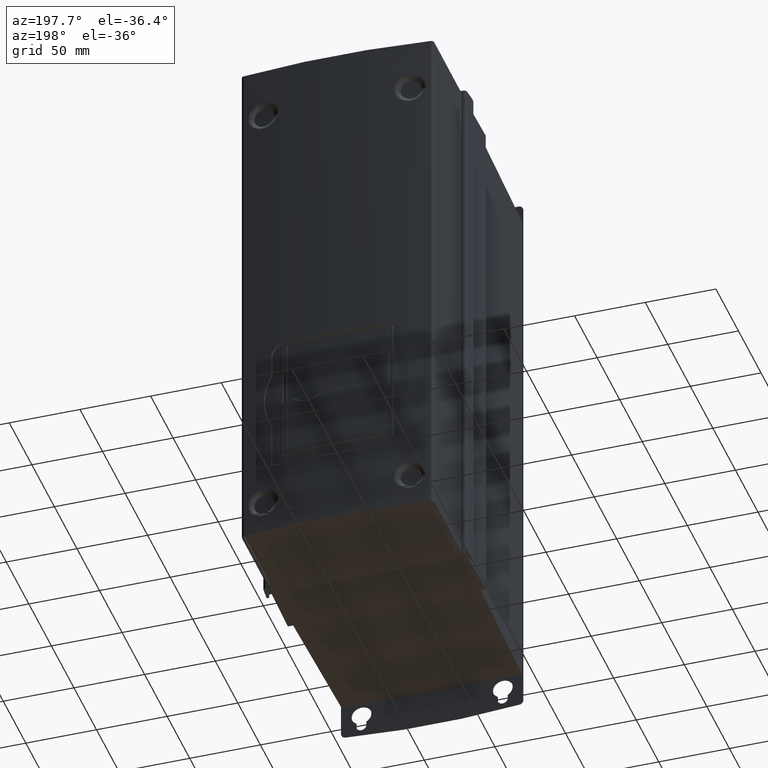
[diagram: clean part render]
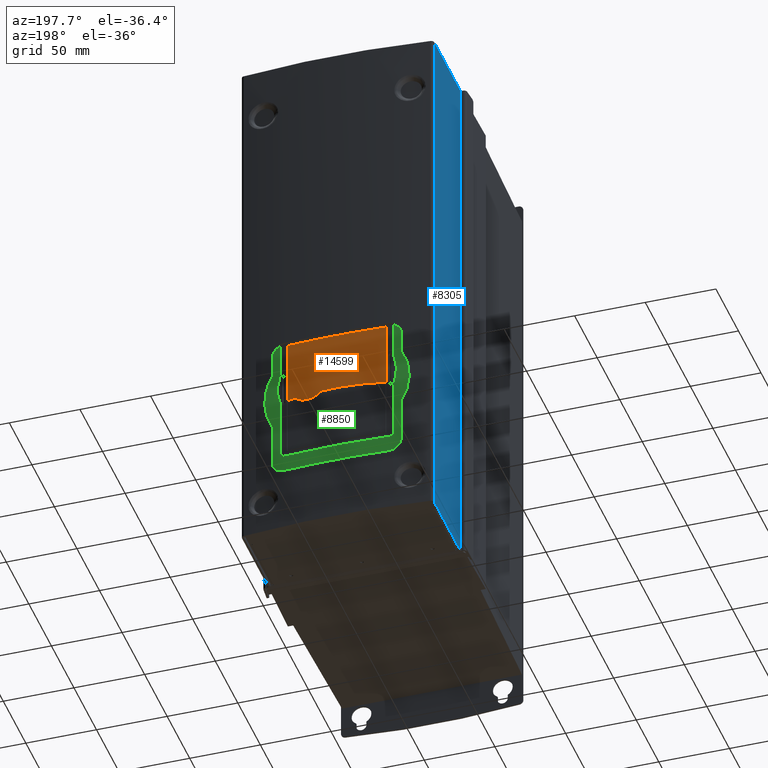
[diagram: same view with three faces highlighted in distinct colors, each labeled with its STEP entity id]
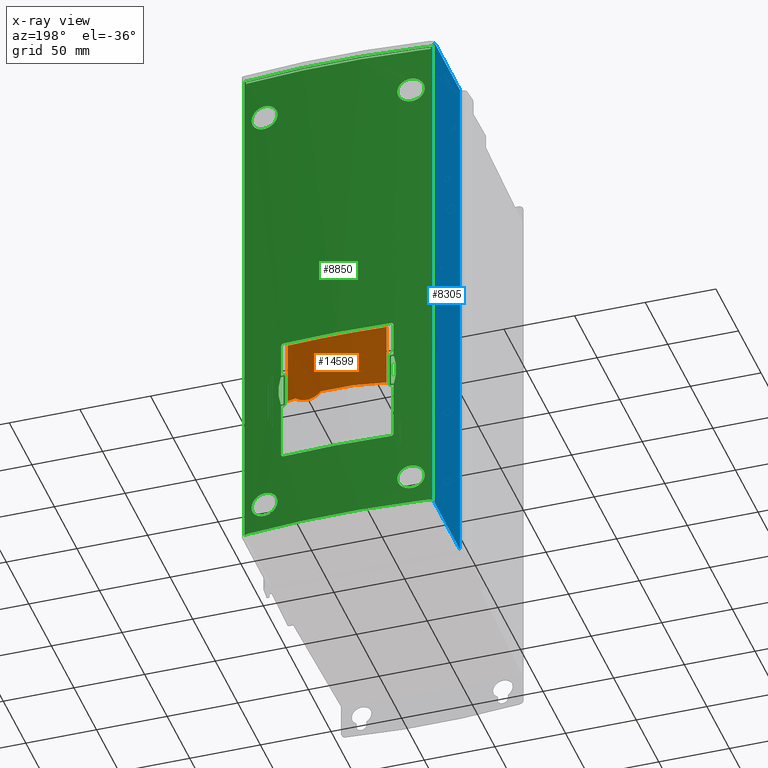
[diagram: x-ray of the same camera — body ghosted, the three highlighted faces saturated]
A machine part, auxiliary view with three faces highlighted in distinct colors.
The next image is the same camera in x-ray (body ghosted, the three faces saturated) — at least one of them is partly hidden behind the body in this view.
Their STEP definitions:

[orange] entity #14599 — the highlighted cylindrical surface (partial cylindrical patch) has radius 599 mm, axis along (0, 0, 1).
#3696=CARTESIAN_POINT('',(-1.457658521832E1,-5.090272251098E2,
-1.180225346024E2));
#3697=DIRECTION('',(0.E0,-1.092036811456E-14,-1.E0));
#3698=DIRECTION('',(-5.790649446275E-2,9.983220111262E-1,-1.091317724375E-14));
#3699=AXIS2_PLACEMENT_3D('',#3696,#3697,#3698);
#3706=DIRECTION('',(-2.570438628942E-6,2.291984071997E-7,9.999999999967E-1));
#3707=VECTOR('',#3706,4.621646966448E1);
#3708=CARTESIAN_POINT('',(2.040501245532E1,8.895043570095E1,-1.645390042667E2));
#3709=LINE('',#3708,#3707);
#3710=DIRECTION('',(1.133374869878E-5,-1.514689978622E-6,-9.999999999346E-1));
#3711=VECTOR('',#3710,4.621694912402E1);
#3712=CARTESIAN_POINT('',(-4.955797290201E1,8.895045598562E1,
-1.183225349429E2));
#3713=LINE('',#3712,#3711);
#3714=CARTESIAN_POINT('',(-4.955744909072E1,8.895038598127E1,
-1.645394840639E2));
#3715=CARTESIAN_POINT('',(-4.445480794766E1,8.924888396594E1,
-1.638157406801E2));
#3716=CARTESIAN_POINT('',(-3.422565451728E1,8.971660283388E1,
-1.626856698376E2));
#3717=CARTESIAN_POINT('',(-1.878365226236E1,9.002426465813E1,
-1.619462787299E2));
#3718=CARTESIAN_POINT('',(-8.500820159940E0,8.996423303556E1,
-1.620906908570E2));
#3719=CARTESIAN_POINT('',(-3.358576399076E0,8.986791597002E1,
-1.623225154068E2));
#3721=CARTESIAN_POINT('',(-3.358576399076E0,8.986791597002E1,
-1.623225154068E2));
#3722=CARTESIAN_POINT('',(-2.733300930721E0,8.985620421518E1,
-1.631068334475E2));
#3723=CARTESIAN_POINT('',(-1.342421607563E0,8.982796970847E1,
-1.644755506794E2));
#3724=CARTESIAN_POINT('',(1.181617027870E0,8.976746465499E1,-1.660077993834E2));
#3725=CARTESIAN_POINT('',(3.948543081832E0,8.968852806886E1,-1.669017932938E2));
#3726=CARTESIAN_POINT('',(6.863914437716E0,8.959129851885E1,-1.671390911920E2));
#3727=CARTESIAN_POINT('',(9.729359844350E0,8.948166481135E1,-1.667090213010E2));
#3728=CARTESIAN_POINT('',(1.247009749024E1,8.936370874363E1,-1.656097308494E2));
#3729=CARTESIAN_POINT('',(1.406711543971E1,8.928799986001E1,-1.644830705674E2));
#3730=CARTESIAN_POINT('',(1.481329349280E1,8.925134449849E1,-1.638094814260E2));
#3732=CARTESIAN_POINT('',(1.481329349280E1,8.925134449849E1,-1.638094814260E2));
#3733=CARTESIAN_POINT('',(1.543562638739E1,8.922077292494E1,-1.638834259193E2));
#3734=CARTESIAN_POINT('',(1.667971819127E1,8.915769608032E1,-1.640363942958E2));
#3735=CARTESIAN_POINT('',(1.854360722817E1,8.905739854228E1,-1.642798151441E2));
#3736=CARTESIAN_POINT('',(1.978478674447E1,8.898671868211E1,-1.644510306612E2));
#3737=CARTESIAN_POINT('',(2.040501245532E1,8.895043570095E1,-1.645390042667E2));
#3903=CARTESIAN_POINT('',(-4.955797290201E1,8.895045598562E1,
-1.183225349429E2));
#3904=CARTESIAN_POINT('',(-4.955797294604E1,8.895045598305E1,
-1.182707862997E2));
#3905=CARTESIAN_POINT('',(-4.953129059140E1,8.895234647937E1,
-1.181666410947E2));
#3906=CARTESIAN_POINT('',(-4.941312923100E1,8.895885915520E1,
-1.180496978579E2));
#3907=CARTESIAN_POINT('',(-4.931209162977E1,8.896478896619E1,
-1.180225349063E2));
#3908=CARTESIAN_POINT('',(-4.926030992751E1,8.896779229200E1,
-1.180225346024E2));
#4066=CARTESIAN_POINT('',(2.010713597043E1,8.896780810855E1,-1.180225346024E2));
#4067=CARTESIAN_POINT('',(2.016147930673E1,8.896465620892E1,-1.180225342835E2));
#4068=CARTESIAN_POINT('',(2.026523544631E1,8.895855386899E1,-1.180529522195E2));
#4069=CARTESIAN_POINT('',(2.037820406079E1,8.895235234762E1,-1.181683340730E2));
#4070=CARTESIAN_POINT('',(2.040489365872E1,8.895044629369E1,-1.182713469798E2));
#4071=CARTESIAN_POINT('',(2.040489365872E1,8.895044629369E1,-1.183225346024E2));
#7104=CARTESIAN_POINT('',(-4.926257540143E1,8.896765955349E1,
-1.180225346024E2));
#7105=CARTESIAN_POINT('',(2.010939873033E1,8.896765991511E1,-1.180225346024E2));
#7106=VERTEX_POINT('',#7104);
#7107=VERTEX_POINT('',#7105);
#7108=CARTESIAN_POINT('',(2.040501245532E1,8.895043570095E1,-1.645390042667E2));
#7109=CARTESIAN_POINT('',(2.040489365872E1,8.895044629369E1,-1.183225346024E2));
#7110=VERTEX_POINT('',#7108);
#7111=VERTEX_POINT('',#7109);
#7112=VERTEX_POINT('',#3903);
#7113=CARTESIAN_POINT('',(-4.955744909072E1,8.895038598127E1,
-1.645394840639E2));
#7114=VERTEX_POINT('',#7113);
#7115=VERTEX_POINT('',#3719);
#7116=VERTEX_POINT('',#3730);
#14577=CARTESIAN_POINT('',(-1.457658521832E1,-5.090272251098E2,
-1.680402866210E2));
#14578=DIRECTION('',(0.E0,1.092036811456E-14,1.E0));
#14579=DIRECTION('',(5.839979779926E-2,9.982932753540E-1,-1.090173005316E-14));
#14580=AXIS2_PLACEMENT_3D('',#14577,#14578,#14579);
#14581=CYLINDRICAL_SURFACE('',#14580,5.989999999987E2);
#14583=ORIENTED_EDGE('',*,*,#14582,.T.);
#14585=ORIENTED_EDGE('',*,*,#14584,.F.);
#14586=ORIENTED_EDGE('',*,*,#14560,.F.);
#14588=ORIENTED_EDGE('',*,*,#14587,.F.);
#14590=ORIENTED_EDGE('',*,*,#14589,.T.);
#14592=ORIENTED_EDGE('',*,*,#14591,.T.);
#14594=ORIENTED_EDGE('',*,*,#14593,.T.);
#14596=ORIENTED_EDGE('',*,*,#14595,.T.);
#14597=EDGE_LOOP('',(#14583,#14585,#14586,#14588,#14590,#14592,#14594,#14596));
#14598=FACE_OUTER_BOUND('',#14597,.F.);
#14599=ADVANCED_FACE('',(#14598),#14581,.T.);
#3700=CIRCLE('',#3699,5.989999999987E2);
#3720=B_SPLINE_CURVE_WITH_KNOTS('',3,(#3714,#3715,#3716,#3717,#3718,#3719),
.UNSPECIFIED.,.F.,.F.,(4,1,1,4),(0.E0,3.333333333333E-1,6.666666666667E-1,1.E0),
.UNSPECIFIED.);
#3731=B_SPLINE_CURVE_WITH_KNOTS('',3,(#3721,#3722,#3723,#3724,#3725,#3726,#3727,
#3728,#3729,#3730),.UNSPECIFIED.,.F.,.F.,(4,1,1,1,1,1,1,4),(0.E0,
1.428571428571E-1,2.857142857143E-1,4.285714285714E-1,5.714285714286E-1,
7.142857142857E-1,8.571428571429E-1,1.E0),.UNSPECIFIED.);
#3738=B_SPLINE_CURVE_WITH_KNOTS('',3,(#3732,#3733,#3734,#3735,#3736,#3737),
.UNSPECIFIED.,.F.,.F.,(4,1,1,4),(0.E0,3.333333333333E-1,6.666666666667E-1,1.E0),
.UNSPECIFIED.);
#3909=B_SPLINE_CURVE_WITH_KNOTS('',3,(#3903,#3904,#3905,#3906,#3907,#3908),
.UNSPECIFIED.,.F.,.F.,(4,1,1,4),(0.E0,3.333333333333E-1,6.666666666667E-1,1.E0),
.UNSPECIFIED.);
#4072=B_SPLINE_CURVE_WITH_KNOTS('',3,(#4066,#4067,#4068,#4069,#4070,#4071),
.UNSPECIFIED.,.F.,.F.,(4,1,1,4),(0.E0,3.333333333333E-1,6.666666666667E-1,1.E0),
.UNSPECIFIED.);
#14560=EDGE_CURVE('',#7106,#7107,#3700,.T.);
#14582=EDGE_CURVE('',#7110,#7111,#3709,.T.);
#14584=EDGE_CURVE('',#7107,#7111,#4072,.T.);
#14587=EDGE_CURVE('',#7112,#7106,#3909,.T.);
#14589=EDGE_CURVE('',#7112,#7114,#3713,.T.);
#14591=EDGE_CURVE('',#7114,#7115,#3720,.T.);
#14593=EDGE_CURVE('',#7115,#7116,#3731,.T.);
#14595=EDGE_CURVE('',#7116,#7110,#3738,.T.);

[blue] entity #8305 — the highlighted planar face has unit normal (-1, 0, 0).
#1055=DIRECTION('',(0.E0,8.541277353501E-14,1.E0));
#1056=VECTOR('',#1055,3.85E2);
#1057=CARTESIAN_POINT('',(-8.256995434269E1,2.912412359864E1,
-2.703627030293E2));
#1058=LINE('',#1057,#1056);
#1063=DIRECTION('',(-5.796013437992E-14,-1.E0,0.E0));
#1064=VECTOR('',#1063,5.737288291225E1);
#1065=CARTESIAN_POINT('',(-8.256995434269E1,8.649700651092E1,1.146372969707E2));
#1066=LINE('',#1065,#1064);
#1067=DIRECTION('',(-1.362310850809E-14,1.E0,0.E0));
#1068=VECTOR('',#1067,5.737288291231E1);
#1069=CARTESIAN_POINT('',(-8.256995434269E1,2.912412359864E1,
-2.703627030293E2));
#1070=LINE('',#1069,#1068);
#1071=DIRECTION('',(0.E0,9.205680950575E-14,-1.E0));
#1072=VECTOR('',#1071,3.85E2);
#1073=CARTESIAN_POINT('',(-8.256995434269E1,8.649700651092E1,1.146372969707E2));
#1074=LINE('',#1073,#1072);
#6936=CARTESIAN_POINT('',(-8.256995434269E1,2.912412359868E1,1.146372969707E2));
#6937=VERTEX_POINT('',#6936);
#6938=CARTESIAN_POINT('',(-8.256995434269E1,8.649700651092E1,1.146372969707E2));
#6939=VERTEX_POINT('',#6938);
#7020=CARTESIAN_POINT('',(-8.256995434269E1,8.649700651096E1,
-2.703627030293E2));
#7021=VERTEX_POINT('',#7020);
#7022=CARTESIAN_POINT('',(-8.256995434269E1,2.912412359864E1,
-2.703627030293E2));
#7023=VERTEX_POINT('',#7022);
#8293=CARTESIAN_POINT('',(-8.256995434269E1,2.837412359868E1,1.146372969707E2));
#8294=DIRECTION('',(-1.E0,0.E0,0.E0));
#8295=DIRECTION('',(0.E0,1.E0,0.E0));
#8296=AXIS2_PLACEMENT_3D('',#8293,#8294,#8295);
#8297=PLANE('',#8296);
#8299=ORIENTED_EDGE('',*,*,#8298,.F.);
#8300=ORIENTED_EDGE('',*,*,#7978,.T.);
#8301=ORIENTED_EDGE('',*,*,#8279,.F.);
#8302=ORIENTED_EDGE('',*,*,#8150,.T.);
#8303=EDGE_LOOP('',(#8299,#8300,#8301,#8302));
#8304=FACE_OUTER_BOUND('',#8303,.F.);
#8305=ADVANCED_FACE('',(#8304),#8297,.T.);
#7978=EDGE_CURVE('',#6939,#6937,#1066,.T.);
#8150=EDGE_CURVE('',#7023,#7021,#1070,.T.);
#8279=EDGE_CURVE('',#7023,#6937,#1058,.T.);
#8298=EDGE_CURVE('',#6939,#7021,#1074,.T.);

[green] entity #8850 — the highlighted cylindrical surface (partial cylindrical patch) has radius 600 mm, axis along (0, 0, -1).
#238=CARTESIAN_POINT('',(-1.457660667599E1,-5.102567225525E2,1.117364577420E2));
#239=DIRECTION('',(0.E0,0.E0,-1.E0));
#240=DIRECTION('',(-1.108222461112E-1,9.938402435839E-1,0.E0));
#241=AXIS2_PLACEMENT_3D('',#238,#239,#240);
#243=CARTESIAN_POINT('',(-1.457660667599E1,-5.102567225525E2,1.117364577420E2));
#244=DIRECTION('',(0.E0,0.E0,-1.E0));
#245=DIRECTION('',(-9.658782684049E-2,9.953244655419E-1,0.E0));
#246=AXIS2_PLACEMENT_3D('',#243,#244,#245);
#634=CARTESIAN_POINT('',(-1.457660667599E1,-5.102567225525E2,
-2.678156366343E2));
#635=DIRECTION('',(0.E0,0.E0,1.E0));
#636=DIRECTION('',(1.108444205555E-1,9.938377706808E-1,0.E0));
#637=AXIS2_PLACEMENT_3D('',#634,#635,#636);
#709=CARTESIAN_POINT('',(-1.457660667599E1,-5.102567225525E2,
-2.678156366343E2));
#710=DIRECTION('',(0.E0,0.E0,1.E0));
#711=DIRECTION('',(-1.085382628914E-1,9.940922721199E-1,0.E0));
#712=AXIS2_PLACEMENT_3D('',#709,#710,#711);
#1303=DIRECTION('',(-4.734098693470E-9,5.276452357149E-9,-1.E0));
#1304=VECTOR('',#1303,4.527476719860E-1);
#1305=CARTESIAN_POINT('',(5.056798939502E1,8.619627777552E1,-2.673628889623E2));
#1306=LINE('',#1305,#1304);
#1307=DIRECTION('',(0.E0,0.E0,1.E0));
#1308=VECTOR('',#1307,3.795520943763E2);
#1309=CARTESIAN_POINT('',(5.193004565731E1,8.604593985606E1,-2.678156366343E2));
#1310=LINE('',#1309,#1308);
#1311=DIRECTION('',(0.E0,0.E0,-1.E0));
#1312=VECTOR('',#1311,3.795520943763E2);
#1313=CARTESIAN_POINT('',(-8.106995434269E1,8.604742359793E1,1.117364577420E2));
#1314=LINE('',#1313,#1312);
#1315=DIRECTION('',(2.491239920472E-9,2.772417530303E-9,1.E0));
#1316=VECTOR('',#1315,4.513265927650E-1);
#1317=CARTESIAN_POINT('',(-7.969956441085E1,8.619864071954E1,
-2.678156366343E2));
#1318=LINE('',#1317,#1316);
#1319=CARTESIAN_POINT('',(2.539998028020E1,8.841002317897E1,-1.430719437886E2));
#1320=CARTESIAN_POINT('',(2.600134835478E1,8.836986607626E1,-1.449201968221E2));
#1321=CARTESIAN_POINT('',(2.679494166132E1,8.831535690109E1,-1.487117142727E2));
#1322=CARTESIAN_POINT('',(2.720543342105E1,8.828671411734E1,-1.544805075642E2));
#1323=CARTESIAN_POINT('',(2.678055878842E1,8.831636536610E1,-1.605236223290E2));
#1324=CARTESIAN_POINT('',(2.598180226852E1,8.837117135271E1,-1.641970862798E2));
#1325=CARTESIAN_POINT('',(2.539992876435E1,8.841002663201E1,-1.659731248434E2));
#1327=CARTESIAN_POINT('',(2.387535031696E1,8.850988280564E1,-1.659719611423E2));
#1328=CARTESIAN_POINT('',(2.381850255810E1,8.851353370248E1,-1.659718974157E2));
#1329=CARTESIAN_POINT('',(2.372291208016E1,8.851965634385E1,-1.659440107058E2));
#1330=CARTESIAN_POINT('',(2.360944871986E1,8.852690090080E1,-1.658380507378E2));
#1331=CARTESIAN_POINT('',(2.357461345960E1,8.852911939261E1,-1.657333139645E2));
#1332=CARTESIAN_POINT('',(2.357461345960E1,8.852911939261E1,-1.656713886276E2));
#1334=DIRECTION('',(-4.234673970133E-10,-2.425456277618E-8,1.E0));
#1335=VECTOR('',#1334,2.229770873536E1);
#1336=CARTESIAN_POINT('',(2.357461345960E1,8.852911939261E1,-1.656713886276E2));
#1337=LINE('',#1336,#1335);
#1338=CARTESIAN_POINT('',(2.357461345016E1,8.852911885179E1,-1.433736798922E2));
#1339=CARTESIAN_POINT('',(2.357461345016E1,8.852911885179E1,-1.433184208456E2));
#1340=CARTESIAN_POINT('',(2.360199510385E1,8.852737579877E1,-1.432217493602E2));
#1341=CARTESIAN_POINT('',(2.370819736777E1,8.852059755613E1,-1.431085309789E2));
#1342=CARTESIAN_POINT('',(2.381188450063E1,8.851395815733E1,-1.430731790829E2));
#1343=CARTESIAN_POINT('',(2.387525616570E1,8.850988830989E1,-1.430731080435E2));
#1345=CARTESIAN_POINT('',(-5.302852469405E1,8.850988530017E1,
-1.430731080886E2));
#1346=CARTESIAN_POINT('',(-5.297167679692E1,8.851353620184E1,
-1.430731696488E2));
#1347=CARTESIAN_POINT('',(-5.287608081184E1,8.851965920228E1,
-1.431010595834E2));
#1348=CARTESIAN_POINT('',(-5.276261968770E1,8.852690360227E1,
-1.432070182174E2));
#1349=CARTESIAN_POINT('',(-5.272778394390E1,8.852912212420E1,
-1.433117553003E2));
#1350=CARTESIAN_POINT('',(-5.272778394391E1,8.852912212420E1,
-1.433736806028E2));
#1352=DIRECTION('',(3.735644155169E-10,-2.175296025992E-8,-1.E0));
#1353=VECTOR('',#1352,2.229770341199E1);
#1354=CARTESIAN_POINT('',(-5.272778394391E1,8.852912212420E1,
-1.433736806028E2));
#1355=LINE('',#1354,#1353);
#1356=CARTESIAN_POINT('',(-5.272778393558E1,8.852912163915E1,
-1.656713840148E2));
#1357=CARTESIAN_POINT('',(-5.272778104779E1,8.852912182315E1,
-1.657266430872E2));
#1358=CARTESIAN_POINT('',(-5.275516696417E1,8.852737841809E1,
-1.658233222449E2));
#1359=CARTESIAN_POINT('',(-5.286136740646E1,8.852060033308E1,
-1.659365374586E2));
#1360=CARTESIAN_POINT('',(-5.296505511541E1,8.851396089695E1,
-1.659718901475E2));
#1361=CARTESIAN_POINT('',(-5.302842674503E1,8.850989105635E1,
-1.659719611118E2));
#1363=CARTESIAN_POINT('',(-5.455314198185E1,8.841002662445E1,
-1.659731253529E2));
#1364=CARTESIAN_POINT('',(-5.513340065454E1,8.837127917729E1,
-1.642020160705E2));
#1365=CARTESIAN_POINT('',(-5.593220894432E1,8.831647466163E1,
-1.605353777869E2));
#1366=CARTESIAN_POINT('',(-5.635913696209E1,8.828667976275E1,
-1.544827597631E2));
#1367=CARTESIAN_POINT('',(-5.594774928475E1,8.831538559222E1,
-1.487076945305E2));
#1368=CARTESIAN_POINT('',(-5.515391939110E1,8.836990899878E1,
-1.449182234486E2));
#1369=CARTESIAN_POINT('',(-5.455319399479E1,8.841002318589E1,
-1.430719448542E2));
#1371=DIRECTION('',(0.E0,1.874643732733E-13,1.E0));
#1372=VECTOR('',#1371,4.048020584078E1);
#1373=CARTESIAN_POINT('',(-5.430623233383E1,8.842646315192E1,
-2.077524863271E2));
#1374=LINE('',#1373,#1372);
#1375=CARTESIAN_POINT('',(-5.252332220433E1,8.854211409894E1,
-1.672736250501E2));
#1376=CARTESIAN_POINT('',(-5.237266893589E1,8.855166036159E1,
-1.672737916807E2));
#1377=CARTESIAN_POINT('',(-5.209102987205E1,8.856939739745E1,
-1.672151789755E2));
#1378=CARTESIAN_POINT('',(-5.172489443653E1,8.859220411526E1,
-1.669722232112E2));
#1379=CARTESIAN_POINT('',(-5.148276162140E1,8.860715486973E1,
-1.666063641790E2));
#1380=CARTESIAN_POINT('',(-5.142396134097E1,8.861076901330E1,
-1.663274763796E2));
#1381=CARTESIAN_POINT('',(-5.142396134097E1,8.861076901330E1,
-1.661753260151E2));
#1383=DIRECTION('',(-3.902475679707E-14,0.E0,1.E0));
#1384=VECTOR('',#1383,2.330558282534E1);
#1385=CARTESIAN_POINT('',(-5.142396134097E1,8.861076901330E1,
-1.661753260151E2));
#1386=LINE('',#1385,#1384);
#1387=CARTESIAN_POINT('',(-5.142396134097E1,8.861076901330E1,
-1.428697431898E2));
#1388=CARTESIAN_POINT('',(-5.142396134097E1,8.861076901330E1,
-1.427172726719E2));
#1389=CARTESIAN_POINT('',(-5.148302444133E1,8.860713871843E1,
-1.424379593309E2));
#1390=CARTESIAN_POINT('',(-5.172550435993E1,8.859216630222E1,
-1.420722749517E2));
#1391=CARTESIAN_POINT('',(-5.209149994146E1,8.856936788533E1,
-1.418297493801E2));
#1392=CARTESIAN_POINT('',(-5.237286546454E1,8.855164790701E1,
-1.417712777436E2));
#1393=CARTESIAN_POINT('',(-5.252332037136E1,8.854211421509E1,
-1.417714441549E2));
#1395=DIRECTION('',(-1.163910299149E-13,0.E0,1.E0));
#1396=VECTOR('',#1395,2.448020584130E1);
#1397=CARTESIAN_POINT('',(-5.430623233383E1,8.842646315193E1,
-1.417727887186E2));
#1398=LINE('',#1397,#1396);
#1399=CARTESIAN_POINT('',(-5.430623233383E1,8.842646315193E1,
-1.172925828773E2));
#1400=CARTESIAN_POINT('',(-5.430623233383E1,8.842646315193E1,
-1.170174462977E2));
#1401=CARTESIAN_POINT('',(-5.420100468245E1,8.843346000961E1,
-1.165121248340E2));
#1402=CARTESIAN_POINT('',(-5.375909655933E1,8.846260663895E1,
-1.158442308490E2));
#1403=CARTESIAN_POINT('',(-5.309459468761E1,8.850579933139E1,
-1.153994853378E2));
#1404=CARTESIAN_POINT('',(-5.257385848783E1,8.853894912443E1,
-1.152991073779E2));
#1405=CARTESIAN_POINT('',(-5.232040442036E1,8.855493833561E1,
-1.152993860912E2));
#1407=CARTESIAN_POINT('',(2.316723443458E1,8.855493560215E1,-1.152993819594E2));
#1408=CARTESIAN_POINT('',(2.341969759230E1,8.853900888404E1,-1.152991043354E2));
#1409=CARTESIAN_POINT('',(2.393911987553E1,8.850594464471E1,-1.153986487273E2));
#1410=CARTESIAN_POINT('',(2.460452885048E1,8.846269576950E1,-1.158426200199E2));
#1411=CARTESIAN_POINT('',(2.504766002519E1,8.843346880857E1,-1.165113381286E2));
#1412=CARTESIAN_POINT('',(2.515306194697E1,8.842646030069E1,-1.170171333164E2));
#1413=CARTESIAN_POINT('',(2.515306194697E1,8.842646030069E1,-1.172925828275E2));
#1415=DIRECTION('',(-2.234939966873E-14,0.E0,-1.E0));
#1416=VECTOR('',#1415,2.448020594042E1);
#1417=CARTESIAN_POINT('',(2.515306194697E1,8.842646030069E1,-1.172925828275E2));
#1418=LINE('',#1417,#1416);
#1419=CARTESIAN_POINT('',(2.337015181355E1,8.854211137643E1,-1.417714442027E2));
#1420=CARTESIAN_POINT('',(2.321949854687E1,8.855165764981E1,-1.417712775719E2));
#1421=CARTESIAN_POINT('',(2.293785948062E1,8.856939470612E1,-1.418298902767E2));
#1422=CARTESIAN_POINT('',(2.257172404504E1,8.859220145030E1,-1.420728460418E2));
#1423=CARTESIAN_POINT('',(2.232959123048E1,8.860715222217E1,-1.424387050736E2));
#1424=CARTESIAN_POINT('',(2.227079095048E1,8.861076636995E1,-1.427175928721E2));
#1425=CARTESIAN_POINT('',(2.227079095048E1,8.861076636995E1,-1.428697432359E2));
#1427=DIRECTION('',(3.536618598734E-14,0.E0,-1.E0));
#1428=VECTOR('',#1427,2.330558273308E1);
#1429=CARTESIAN_POINT('',(2.227079095048E1,8.861076636995E1,-1.428697432359E2));
#1430=LINE('',#1429,#1428);
#1431=CARTESIAN_POINT('',(2.227079095048E1,8.861076636995E1,-1.661753259690E2));
#1432=CARTESIAN_POINT('',(2.227079095048E1,8.861076636995E1,-1.663277964863E2));
#1433=CARTESIAN_POINT('',(2.232985405051E1,8.860713607084E1,-1.666071098265E2));
#1434=CARTESIAN_POINT('',(2.257233396851E1,8.859216363721E1,-1.669727942051E2));
#1435=CARTESIAN_POINT('',(2.293832954984E1,8.856936519397E1,-1.672153197774E2));
#1436=CARTESIAN_POINT('',(2.321969507543E1,8.855164519523E1,-1.672737914136E2));
#1437=CARTESIAN_POINT('',(2.337014998059E1,8.854211149258E1,-1.672736250022E2));
#1439=DIRECTION('',(-4.783149961728E-14,0.E0,-1.E0));
#1440=VECTOR('',#1439,4.048020594041E1);
#1441=CARTESIAN_POINT('',(2.515306194697E1,8.842646030069E1,-1.672722804370E2));
#1442=LINE('',#1441,#1440);
#1443=CARTESIAN_POINT('',(2.515306194697E1,8.842646030069E1,-2.077524863774E2));
#1444=CARTESIAN_POINT('',(2.515306194697E1,8.842646030069E1,-2.080276229560E2));
#1445=CARTESIAN_POINT('',(2.504783431425E1,8.843345716487E1,-2.085329444116E2));
#1446=CARTESIAN_POINT('',(2.460592611125E1,8.846260383069E1,-2.092008384249E2));
#1447=CARTESIAN_POINT('',(2.394142453907E1,8.850579655359E1,-2.096455838281E2));
#1448=CARTESIAN_POINT('',(2.342068759592E1,8.853894642739E1,-2.097459620581E2));
#1449=CARTESIAN_POINT('',(2.316723352398E1,8.855493565712E1,-2.097456831527E2));
#1451=CARTESIAN_POINT('',(-5.232040390140E1,8.855493836342E1,
-2.097456879765E2));
#1452=CARTESIAN_POINT('',(-5.257262448570E1,8.853902696621E1,
-2.097459657109E2));
#1453=CARTESIAN_POINT('',(-5.309170860837E1,8.850598492526E1,
-2.096466953928E2));
#1454=CARTESIAN_POINT('',(-5.375775490685E1,8.846269502973E1,
-2.092023964835E2));
#1455=CARTESIAN_POINT('',(-5.420056115793E1,8.843348941454E1,
-2.085342957549E2));
#1456=CARTESIAN_POINT('',(-5.430623233403E1,8.842646315191E1,
-2.080281729068E2));
#1457=CARTESIAN_POINT('',(-5.430623233383E1,8.842646315192E1,
-2.077524863271E2));
#1459=CARTESIAN_POINT('',(-7.252929233798E1,8.693797418264E1,8.476174868869E1));
#1460=CARTESIAN_POINT('',(-7.184557851896E1,8.700432282999E1,8.535401730206E1));
#1461=CARTESIAN_POINT('',(-7.036921686985E1,8.714523389032E1,8.629757072717E1));
#1462=CARTESIAN_POINT('',(-6.780728374453E1,8.737942094447E1,8.707878552018E1));
#1463=CARTESIAN_POINT('',(-6.506247278660E1,8.761751830028E1,8.708111608575E1));
#1464=CARTESIAN_POINT('',(-6.250516832231E1,8.782758119953E1,8.633710140030E1));
#1465=CARTESIAN_POINT('',(-6.023511324644E1,8.800467439158E1,8.488974306692E1));
#1466=CARTESIAN_POINT('',(-5.846709615201E1,8.813640552882E1,8.288333720134E1));
#1467=CARTESIAN_POINT('',(-5.730867811650E1,8.821980862593E1,8.039171603792E1));
#1468=CARTESIAN_POINT('',(-5.703352342163E1,8.823923417618E1,7.858919903023E1));
#1469=CARTESIAN_POINT('',(-5.703352342163E1,8.823923417618E1,7.763729697073E1));
#1471=CARTESIAN_POINT('',(4.663950669965E1,8.661226429746E1,7.763729697073E1));
#1472=CARTESIAN_POINT('',(4.663950669965E1,8.661226429746E1,7.670305554052E1));
#1473=CARTESIAN_POINT('',(4.637479175120E1,8.663950965626E1,7.492498569963E1));
#1474=CARTESIAN_POINT('',(4.522308785536E1,8.675642595560E1,7.242424793161E1));
#1475=CARTESIAN_POINT('',(4.345768324094E1,8.693122804558E1,7.040347516496E1));
#1476=CARTESIAN_POINT('',(4.114236792131E1,8.715225823226E1,6.892717651505E1));
#1477=CARTESIAN_POINT('',(3.854365749359E1,8.738919111595E1,6.818360386879E1));
#1478=CARTESIAN_POINT('',(3.588780512805E1,8.761915222760E1,6.821074214533E1));
#1479=CARTESIAN_POINT('',(3.342211894832E1,8.782192507389E1,6.891673349928E1));
#1480=CARTESIAN_POINT('',(3.111308653415E1,8.800235889849E1,7.036341025197E1));
#1481=CARTESIAN_POINT('',(2.931652921106E1,8.813621305626E1,7.240565786390E1));
#1482=CARTESIAN_POINT('',(2.816454566825E1,8.821915502120E1,7.490336408738E1));
#1483=CARTESIAN_POINT('',(2.789460046343E1,8.823822026880E1,7.669520590108E1));
#1484=CARTESIAN_POINT('',(2.789463080060E1,8.823821811597E1,7.763758669862E1));
#1486=CARTESIAN_POINT('',(-7.252929233798E1,8.693797418264E1,
-2.392382513113E2));
#1487=CARTESIAN_POINT('',(-7.184557851898E1,8.700432282999E1,
-2.386459826980E2));
#1488=CARTESIAN_POINT('',(-7.036921686991E1,8.714523389031E1,
-2.377024292729E2));
#1489=CARTESIAN_POINT('',(-6.780728374462E1,8.737942094446E1,
-2.369212144799E2));
#1490=CARTESIAN_POINT('',(-6.506247278669E1,8.761751830027E1,
-2.369188839142E2));
#1491=CARTESIAN_POINT('',(-6.250516832238E1,8.782758119953E1,
-2.376628985997E2));
#1492=CARTESIAN_POINT('',(-6.023511324648E1,8.800467439158E1,
-2.391102569331E2));
#1493=CARTESIAN_POINT('',(-5.846709615201E1,8.813640552882E1,
-2.411166627987E2));
#1494=CARTESIAN_POINT('',(-5.730867811647E1,8.821980862593E1,
-2.436082839621E2));
#1495=CARTESIAN_POINT('',(-5.703352342162E1,8.823923417618E1,
-2.454108009698E2));
#1496=CARTESIAN_POINT('',(-5.703352342162E1,8.823923417618E1,
-2.463627030293E2));
#1498=CARTESIAN_POINT('',(4.663950669966E1,8.661226429746E1,-2.463627030293E2));
#1499=CARTESIAN_POINT('',(4.663950669966E1,8.661226429746E1,-2.472969444596E2));
#1500=CARTESIAN_POINT('',(4.637479175119E1,8.663950965626E1,-2.490750143005E2));
#1501=CARTESIAN_POINT('',(4.522308785529E1,8.675642595561E1,-2.515757520685E2));
#1502=CARTESIAN_POINT('',(4.345768324091E1,8.693122804558E1,-2.535965248351E2));
#1503=CARTESIAN_POINT('',(4.114236792139E1,8.715225823225E1,-2.550728234850E2));
#1504=CARTESIAN_POINT('',(3.854365749360E1,8.738919111595E1,-2.558163961313E2));
#1505=CARTESIAN_POINT('',(3.588780512781E1,8.761915222762E1,-2.557892578547E2));
#1506=CARTESIAN_POINT('',(3.342211894811E1,8.782192507391E1,-2.550832665006E2));
#1507=CARTESIAN_POINT('',(3.111308653407E1,8.800235889850E1,-2.536365897479E2));
#1508=CARTESIAN_POINT('',(2.931652921102E1,8.813621305626E1,-2.515943421360E2));
#1509=CARTESIAN_POINT('',(2.816454566826E1,8.821915502120E1,-2.490966359125E2));
#1510=CARTESIAN_POINT('',(2.789460046344E1,8.823822026879E1,-2.473047940989E2));
#1511=CARTESIAN_POINT('',(2.789463080061E1,8.823821811596E1,-2.463624133014E2));
#1513=CARTESIAN_POINT('',(-7.252941405380E1,8.693909998630E1,1.109337056727E2));
#1514=CARTESIAN_POINT('',(-5.884445705915E1,8.826710939657E1,1.108643625072E2));
#1515=CARTESIAN_POINT('',(-3.146163021723E1,8.997642675103E1,1.107681840132E2));
#1516=CARTESIAN_POINT('',(9.775826001173E0,8.972045953606E1,1.107851975925E2));
#1517=CARTESIAN_POINT('',(3.712344305714E1,8.766941495298E1,1.108925065234E2));
#1518=CARTESIAN_POINT('',(5.079089346940E1,8.617188991688E1,1.109712016993E2));
#1520=CARTESIAN_POINT('',(-1.457660667599E1,-5.102567225525E2,
-2.673635604758E2));
#1521=DIRECTION('',(0.E0,0.E0,1.E0));
#1522=DIRECTION('',(1.085743267933E-1,9.940883338825E-1,0.E0));
#1523=AXIS2_PLACEMENT_3D('',#1520,#1521,#1522);
#1525=CARTESIAN_POINT('',(-1.457660667599E1,-5.102567225525E2,
-2.673635604758E2));
#1526=DIRECTION('',(0.E0,0.E0,1.E0));
#1527=DIRECTION('',(-9.658782681164E-2,9.953244655447E-1,0.E0));
#1528=AXIS2_PLACEMENT_3D('',#1525,#1526,#1527);
#2071=CARTESIAN_POINT('',(2.539998028020E1,8.841002317897E1,-1.430719437886E2));
#2072=CARTESIAN_POINT('',(2.489146233379E1,8.844398009865E1,-1.430725365089E2));
#2073=CARTESIAN_POINT('',(2.438385886073E1,8.847722488889E1,-1.430725379013E2));
#2074=CARTESIAN_POINT('',(2.387525616570E1,8.850988830989E1,-1.430731080435E2));
#2101=CARTESIAN_POINT('',(2.387535031696E1,8.850988280564E1,-1.659719611423E2));
#2102=CARTESIAN_POINT('',(2.438393554695E1,8.847722026540E1,-1.659725312690E2));
#2103=CARTESIAN_POINT('',(2.489142826181E1,8.844398234387E1,-1.659725321443E2));
#2104=CARTESIAN_POINT('',(2.539992876435E1,8.841002663201E1,-1.659731248434E2));
#2209=CARTESIAN_POINT('',(-5.302852469405E1,8.850988530017E1,
-1.430731080886E2));
#2210=CARTESIAN_POINT('',(-5.353714166511E1,8.847722075778E1,
-1.430725379269E2));
#2211=CARTESIAN_POINT('',(-5.404466176166E1,8.844398105962E1,
-1.430725375911E2));
#2212=CARTESIAN_POINT('',(-5.455319399479E1,8.841002318589E1,
-1.430719448542E2));
#2223=CARTESIAN_POINT('',(-5.455314198185E1,8.841002662445E1,
-1.659731253529E2));
#2224=CARTESIAN_POINT('',(-5.404462719264E1,8.844398329042E1,
-1.659725326371E2));
#2225=CARTESIAN_POINT('',(-5.353702628183E1,8.847722787480E1,
-1.659725312498E2));
#2226=CARTESIAN_POINT('',(-5.302842674503E1,8.850989105635E1,
-1.659719611118E2));
#2371=CARTESIAN_POINT('',(-5.232040390140E1,8.855493836342E1,
-2.097456879765E2));
#2372=CARTESIAN_POINT('',(-4.394269133284E1,8.908344840868E1,
-2.097364627993E2));
#2373=CARTESIAN_POINT('',(-2.715692901430E1,8.978866202398E1,
-2.097298208648E2));
#2374=CARTESIAN_POINT('',(-1.996241290199E0,8.978866113252E1,
-2.097298238030E2));
#2375=CARTESIAN_POINT('',(1.478952099207E1,8.908344628320E1,-2.097364579654E2));
#2376=CARTESIAN_POINT('',(2.316723352398E1,8.855493565712E1,-2.097456831527E2));
#2407=CARTESIAN_POINT('',(2.515306194697E1,8.842646030069E1,-1.672722804370E2));
#2408=CARTESIAN_POINT('',(2.495516576397E1,8.843959303934E1,-1.672725096698E2));
#2409=CARTESIAN_POINT('',(2.455913746334E1,8.846567661943E1,-1.672724229722E2));
#2410=CARTESIAN_POINT('',(2.396639512315E1,8.850412705569E1,-1.672734986074E2));
#2411=CARTESIAN_POINT('',(2.356808447408E1,8.852956920555E1,-1.672734060757E2));
#2412=CARTESIAN_POINT('',(2.337014998059E1,8.854211149258E1,-1.672736250022E2));
#2451=CARTESIAN_POINT('',(2.337015181355E1,8.854211137643E1,-1.417714442027E2));
#2452=CARTESIAN_POINT('',(2.356808630694E1,8.852956908758E1,-1.417716631292E2));
#2453=CARTESIAN_POINT('',(2.396639426782E1,8.850412711074E1,-1.417715705975E2));
#2454=CARTESIAN_POINT('',(2.455913770772E1,8.846567660370E1,-1.417726462327E2));
#2455=CARTESIAN_POINT('',(2.495516576397E1,8.843959303934E1,-1.417725595351E2));
#2456=CARTESIAN_POINT('',(2.515306194697E1,8.842646030069E1,-1.417727887679E2));
#2479=CARTESIAN_POINT('',(2.316723443458E1,8.855493560215E1,-1.152993819594E2));
#2480=CARTESIAN_POINT('',(1.478952190383E1,8.908344624522E1,-1.153086071470E2));
#2481=CARTESIAN_POINT('',(-1.996241784727E0,8.978866114385E1,
-1.153152479600E2));
#2482=CARTESIAN_POINT('',(-2.715692865111E1,8.978866204132E1,
-1.153152455252E2));
#2483=CARTESIAN_POINT('',(-4.394269185063E1,8.908344836067E1,
-1.153086112680E2));
#2484=CARTESIAN_POINT('',(-5.232040442036E1,8.855493833561E1,
-1.152993860912E2));
#2512=CARTESIAN_POINT('',(-5.430623233383E1,8.842646315193E1,
-1.417727887186E2));
#2513=CARTESIAN_POINT('',(-5.410833615100E1,8.843959587630E1,
-1.417725594860E2));
#2514=CARTESIAN_POINT('',(-5.371230785100E1,8.846567942781E1,
-1.417726461834E2));
#2515=CARTESIAN_POINT('',(-5.311956551056E1,8.850412982138E1,
-1.417715705494E2));
#2516=CARTESIAN_POINT('',(-5.272125486453E1,8.852957194234E1,
-1.417716630810E2));
#2517=CARTESIAN_POINT('',(-5.252332037136E1,8.854211421509E1,
-1.417714441549E2));
#2556=CARTESIAN_POINT('',(-5.252332220433E1,8.854211409894E1,
-1.672736250501E2));
#2557=CARTESIAN_POINT('',(-5.272125669740E1,8.852957182437E1,
-1.672734061238E2));
#2558=CARTESIAN_POINT('',(-5.311956465522E1,8.850412987643E1,
-1.672734986555E2));
#2559=CARTESIAN_POINT('',(-5.371230809538E1,8.846567941208E1,
-1.672724230215E2));
#2560=CARTESIAN_POINT('',(-5.410833615100E1,8.843959587630E1,
-1.672725097189E2));
#2561=CARTESIAN_POINT('',(-5.430623233383E1,8.842646315193E1,
-1.672722804863E2));
#2974=CARTESIAN_POINT('',(-7.252929233798E1,8.693797418264E1,
-2.392382513113E2));
#2975=CARTESIAN_POINT('',(-7.304832318587E1,8.688760662573E1,
-2.396878629354E2));
#2976=CARTESIAN_POINT('',(-7.396404803753E1,8.679738965851E1,
-2.406745809495E2));
#2977=CARTESIAN_POINT('',(-7.501120717372E1,8.669210081351E1,
-2.424466582976E2));
#2978=CARTESIAN_POINT('',(-7.564328086221E1,8.662761121252E1,
-2.443847496830E2));
#2979=CARTESIAN_POINT('',(-7.578065385366E1,8.661350170835E1,
-2.456952021849E2));
#2980=CARTESIAN_POINT('',(-7.578065289429E1,8.661350180672E1,
-2.463627154016E2));
#3003=CARTESIAN_POINT('',(-7.578065289429E1,8.661350180672E1,
-2.463627154016E2));
#3004=CARTESIAN_POINT('',(-7.578065193484E1,8.661350190510E1,
-2.470302793960E2));
#3005=CARTESIAN_POINT('',(-7.564326117320E1,8.662761323231E1,
-2.483407802387E2));
#3006=CARTESIAN_POINT('',(-7.501110490337E1,8.669211123610E1,
-2.502789744524E2));
#3007=CARTESIAN_POINT('',(-7.396410113125E1,8.679738393756E1,
-2.520507005533E2));
#3008=CARTESIAN_POINT('',(-7.304836584522E1,8.688760325119E1,
-2.530375094158E2));
#3009=CARTESIAN_POINT('',(-7.252929183807E1,8.693797499634E1,
-2.534871581902E2));
#3011=CARTESIAN_POINT('',(-7.252929183807E1,8.693797499634E1,
-2.534871581902E2));
#3012=CARTESIAN_POINT('',(-7.192898565395E1,8.699622963769E1,
-2.540071744812E2));
#3013=CARTESIAN_POINT('',(-7.063404572505E1,8.712001470817E1,
-2.548646313531E2));
#3014=CARTESIAN_POINT('',(-6.843616794762E1,8.732261184514E1,
-2.556592576161E2));
#3015=CARTESIAN_POINT('',(-6.596188315734E1,8.754050578968E1,
-2.558668820096E2));
#3016=CARTESIAN_POINT('',(-6.365822345428E1,8.773382844052E1,
-2.554665298939E2));
#3017=CARTESIAN_POINT('',(-6.145748575868E1,8.791015244064E1,
-2.544786185461E2));
#3018=CARTESIAN_POINT('',(-5.960210843288E1,8.805223462081E1,
-2.529838611415E2));
#3019=CARTESIAN_POINT('',(-5.816537269499E1,8.815825451713E1,
-2.510609139492E2));
#3020=CARTESIAN_POINT('',(-5.724761412861E1,8.822410151130E1,
-2.488037413684E2));
#3021=CARTESIAN_POINT('',(-5.703352342162E1,8.823923417618E1,
-2.471998065425E2));
#3022=CARTESIAN_POINT('',(-5.703352342162E1,8.823923417618E1,
-2.463627030293E2));
#3126=CARTESIAN_POINT('',(4.663950669965E1,8.661226429746E1,7.763729697073E1));
#3127=CARTESIAN_POINT('',(4.663950669965E1,8.661226429746E1,7.845932716920E1));
#3128=CARTESIAN_POINT('',(4.643414837152E1,8.663338120229E1,8.005281859440E1));
#3129=CARTESIAN_POINT('',(4.548627453191E1,8.672985551898E1,8.238834480498E1));
#3130=CARTESIAN_POINT('',(4.395620039905E1,8.688222360680E1,8.437817503112E1));
#3131=CARTESIAN_POINT('',(4.200278614910E1,8.707098635252E1,8.588520518201E1));
#3132=CARTESIAN_POINT('',(3.965760638725E1,8.728870211764E1,8.684599845176E1));
#3133=CARTESIAN_POINT('',(3.731080129038E1,8.749710463138E1,8.714871660307E1));
#3134=CARTESIAN_POINT('',(3.486766578206E1,8.770412615341E1,8.684758531545E1));
#3135=CARTESIAN_POINT('',(3.261089733183E1,8.788613646980E1,8.593074293319E1));
#3136=CARTESIAN_POINT('',(3.060752983149E1,8.804042134506E1,8.442026403550E1));
#3137=CARTESIAN_POINT('',(2.907296584443E1,8.815386247021E1,8.243543505564E1));
#3138=CARTESIAN_POINT('',(2.810618965151E1,8.822326850147E1,8.008971735595E1));
#3139=CARTESIAN_POINT('',(2.789465772988E1,8.823821620497E1,7.847410604230E1));
#3140=CARTESIAN_POINT('',(2.789463080060E1,8.823821811597E1,7.763758669862E1));
#3228=CARTESIAN_POINT('',(-7.252929233798E1,8.693797418264E1,8.476174868869E1));
#3229=CARTESIAN_POINT('',(-7.304832318585E1,8.688760662573E1,8.431213706464E1));
#3230=CARTESIAN_POINT('',(-7.396404803750E1,8.679738965851E1,8.332541905056E1));
#3231=CARTESIAN_POINT('',(-7.501120717369E1,8.669210081351E1,8.155334170252E1));
#3232=CARTESIAN_POINT('',(-7.564328086222E1,8.662761121252E1,7.961525031705E1));
#3233=CARTESIAN_POINT('',(-7.578065385367E1,8.661350170834E1,7.830479781514E1));
#3234=CARTESIAN_POINT('',(-7.578065289429E1,8.661350180672E1,7.763728459835E1));
#3257=CARTESIAN_POINT('',(-7.578065289429E1,8.661350180672E1,7.763728459835E1));
#3258=CARTESIAN_POINT('',(-7.578065193484E1,8.661350190510E1,7.696972060401E1));
#3259=CARTESIAN_POINT('',(-7.564326117322E1,8.662761323231E1,7.565921976145E1));
#3260=CARTESIAN_POINT('',(-7.501110490341E1,8.669211123609E1,7.372102554772E1));
#3261=CARTESIAN_POINT('',(-7.396410113129E1,8.679738393756E1,7.194929944675E1));
#3262=CARTESIAN_POINT('',(-7.304836584524E1,8.688760325119E1,7.096249058425E1));
#3263=CARTESIAN_POINT('',(-7.252929183807E1,8.693797499634E1,7.051284180981E1));
#3265=CARTESIAN_POINT('',(-7.252929183807E1,8.693797499634E1,7.051284180981E1));
#3266=CARTESIAN_POINT('',(-7.192898565397E1,8.699622963769E1,6.999282551881E1));
#3267=CARTESIAN_POINT('',(-7.063404572512E1,8.712001470816E1,6.913536864695E1));
#3268=CARTESIAN_POINT('',(-6.843616794776E1,8.732261184512E1,6.834074238393E1));
#3269=CARTESIAN_POINT('',(-6.596188315751E1,8.754050578966E1,6.813311799044E1));
#3270=CARTESIAN_POINT('',(-6.365822345445E1,8.773382844051E1,6.853347010608E1));
#3271=CARTESIAN_POINT('',(-6.145748575882E1,8.791015244063E1,6.952138145389E1));
#3272=CARTESIAN_POINT('',(-5.960210843297E1,8.805223462080E1,7.101613885841E1));
#3273=CARTESIAN_POINT('',(-5.816537269504E1,8.815825451713E1,7.293908605075E1));
#3274=CARTESIAN_POINT('',(-5.724761412863E1,8.822410151130E1,7.519625863154E1));
#3275=CARTESIAN_POINT('',(-5.703352342163E1,8.823923417618E1,7.680019345747E1));
#3276=CARTESIAN_POINT('',(-5.703352342163E1,8.823923417618E1,7.763729697073E1));
#3380=CARTESIAN_POINT('',(4.663950669966E1,8.661226429746E1,-2.463627030293E2));
#3381=CARTESIAN_POINT('',(4.663950669966E1,8.661226429746E1,-2.455406728308E2));
#3382=CARTESIAN_POINT('',(4.643414837151E1,8.663338120229E1,-2.439471814055E2));
#3383=CARTESIAN_POINT('',(4.548627453188E1,8.672985551899E1,-2.416116551950E2));
#3384=CARTESIAN_POINT('',(4.395620039903E1,8.688222360680E1,-2.396218249689E2));
#3385=CARTESIAN_POINT('',(4.200278614911E1,8.707098635252E1,-2.381147948180E2));
#3386=CARTESIAN_POINT('',(3.965760638723E1,8.728870211764E1,-2.371540015483E2));
#3387=CARTESIAN_POINT('',(3.731080129031E1,8.749710463139E1,-2.368512833969E2));
#3388=CARTESIAN_POINT('',(3.486766578198E1,8.770412615341E1,-2.371524146846E2));
#3389=CARTESIAN_POINT('',(3.261089733178E1,8.788613646981E1,-2.380692570669E2));
#3390=CARTESIAN_POINT('',(3.060752983146E1,8.804042134506E1,-2.395797359645E2));
#3391=CARTESIAN_POINT('',(2.907296584444E1,8.815386247021E1,-2.415645649444E2));
#3392=CARTESIAN_POINT('',(2.810618965154E1,8.822326850147E1,-2.439102826440E2));
#3393=CARTESIAN_POINT('',(2.789465772988E1,8.823821620497E1,-2.455258939577E2));
#3394=CARTESIAN_POINT('',(2.789463080061E1,8.823821811596E1,-2.463624133014E2));
#4077=CARTESIAN_POINT('',(-7.252941405380E1,8.693909998630E1,1.109337056727E2));
#4078=CARTESIAN_POINT('',(-7.335326004135E1,8.685915269640E1,1.109378801899E2));
#4079=CARTESIAN_POINT('',(-7.499952033525E1,8.669677593301E1,1.109383592142E2));
#4080=CARTESIAN_POINT('',(-7.747461840104E1,8.643990389343E1,1.109587498300E2));
#4081=CARTESIAN_POINT('',(-7.910770643103E1,8.626351446329E1,1.109573637870E2));
#4082=CARTESIAN_POINT('',(-7.993049744750E1,8.617338132239E1,1.109620719912E2));
#4097=CARTESIAN_POINT('',(-7.993049744750E1,8.617338132239E1,1.109620719912E2));
#4098=CARTESIAN_POINT('',(-7.991311274079E1,8.617528574063E1,1.106281819849E2));
#4099=CARTESIAN_POINT('',(-7.991311274079E1,8.617528574063E1,1.102943440535E2));
#4100=CARTESIAN_POINT('',(-7.989572803409E1,8.617719015887E1,1.099604540473E2));
#4102=CARTESIAN_POINT('',(-7.989572803409E1,8.617719015887E1,1.099604540473E2));
#4103=CARTESIAN_POINT('',(-7.907873204490E1,8.626668847999E1,1.099557790036E2));
#4104=CARTESIAN_POINT('',(-7.743171348334E1,8.644439316158E1,1.099571611986E2));
#4105=CARTESIAN_POINT('',(-7.498443526885E1,8.669825073040E1,1.099369207683E2));
#4106=CARTESIAN_POINT('',(-7.334745657553E1,8.685970542271E1,1.099364444679E2));
#4107=CARTESIAN_POINT('',(-7.252941304556E1,8.693908963314E1,1.099322993524E2));
#4109=CARTESIAN_POINT('',(-7.252941304556E1,8.693908963314E1,1.099322993524E2));
#4110=CARTESIAN_POINT('',(-5.885019324154E1,8.826654229756E1,1.098629852579E2));
#4111=CARTESIAN_POINT('',(-3.147797080834E1,8.998905653959E1,1.097661627568E2));
#4112=CARTESIAN_POINT('',(9.734004561806E0,8.973359614204E1,1.097831468294E2));
#4113=CARTESIAN_POINT('',(3.709448258293E1,8.767258811505E1,1.098909371014E2));
#4114=CARTESIAN_POINT('',(5.075614860030E1,8.617569686768E1,1.099695989716E2));
#4129=CARTESIAN_POINT('',(5.075614860030E1,8.617569686768E1,1.099695989716E2));
#4130=CARTESIAN_POINT('',(5.077352103485E1,8.617379339228E1,1.103034895263E2));
#4131=CARTESIAN_POINT('',(5.077352103485E1,8.617379339228E1,1.106373111445E2));
#4132=CARTESIAN_POINT('',(5.079089346940E1,8.617188991688E1,1.109712016993E2));
#6247=VERTEX_POINT('',#2512);
#6248=VERTEX_POINT('',#2517);
#6249=CARTESIAN_POINT('',(5.056798940001E1,8.619627777713E1,-2.673635604758E2));
#6250=CARTESIAN_POINT('',(-7.252930276298E1,8.693795677441E1,
-2.673635604758E2));
#6251=VERTEX_POINT('',#6249);
#6252=VERTEX_POINT('',#6250);
#6253=CARTESIAN_POINT('',(-7.969956440712E1,8.619864071995E1,
-2.673635604758E2));
#6254=VERTEX_POINT('',#6253);
#6255=CARTESIAN_POINT('',(5.056798939288E1,8.619627777791E1,-2.678156366343E2));
#6256=VERTEX_POINT('',#6255);
#6257=CARTESIAN_POINT('',(5.193004565730E1,8.604593985606E1,-2.678156366343E2));
#6258=VERTEX_POINT('',#6257);
#6259=CARTESIAN_POINT('',(5.193004565731E1,8.604593985606E1,1.117364577420E2));
#6260=VERTEX_POINT('',#6259);
#6261=CARTESIAN_POINT('',(-7.252930278029E1,8.693795677273E1,1.117364577420E2));
#6262=VERTEX_POINT('',#6261);
#6263=CARTESIAN_POINT('',(-8.106995434269E1,8.604742359793E1,1.117364577420E2));
#6264=VERTEX_POINT('',#6263);
#6265=CARTESIAN_POINT('',(-8.106995434269E1,8.604742359793E1,
-2.678156366343E2));
#6266=VERTEX_POINT('',#6265);
#6267=CARTESIAN_POINT('',(-7.969956441085E1,8.619864071954E1,
-2.678156366343E2));
#6268=VERTEX_POINT('',#6267);
#6269=VERTEX_POINT('',#2071);
#6270=VERTEX_POINT('',#2074);
#6271=VERTEX_POINT('',#1325);
#6272=VERTEX_POINT('',#2101);
#6273=VERTEX_POINT('',#1332);
#6274=CARTESIAN_POINT('',(2.357461345016E1,8.852911885179E1,-1.433736798922E2));
#6275=VERTEX_POINT('',#6274);
#6276=VERTEX_POINT('',#2209);
#6277=VERTEX_POINT('',#2212);
#6278=VERTEX_POINT('',#1350);
#6279=CARTESIAN_POINT('',(-5.272778393558E1,8.852912163915E1,
-1.656713840148E2));
#6280=VERTEX_POINT('',#6279);
#6281=VERTEX_POINT('',#1361);
#6282=VERTEX_POINT('',#2223);
#6283=CARTESIAN_POINT('',(-5.430623233383E1,8.842646315192E1,
-2.077524863271E2));
#6284=CARTESIAN_POINT('',(-5.430623233383E1,8.842646315193E1,
-1.672722804863E2));
#6285=VERTEX_POINT('',#6283);
#6286=VERTEX_POINT('',#6284);
#6287=VERTEX_POINT('',#2556);
#6288=VERTEX_POINT('',#1381);
#6289=CARTESIAN_POINT('',(-5.142396134097E1,8.861076901330E1,
-1.428697431898E2));
#6290=VERTEX_POINT('',#6289);
#6291=CARTESIAN_POINT('',(-5.430623233383E1,8.842646315193E1,
-1.172925828773E2));
#6292=VERTEX_POINT('',#6291);
#6293=VERTEX_POINT('',#1405);
#6294=VERTEX_POINT('',#2479);
#6295=VERTEX_POINT('',#1413);
#6296=CARTESIAN_POINT('',(2.515306194697E1,8.842646030069E1,-1.417727887679E2));
#6297=VERTEX_POINT('',#6296);
#6298=VERTEX_POINT('',#2451);
#6299=VERTEX_POINT('',#1425);
#6300=CARTESIAN_POINT('',(2.227079095048E1,8.861076636995E1,-1.661753259690E2));
#6301=VERTEX_POINT('',#6300);
#6302=VERTEX_POINT('',#1437);
#6303=VERTEX_POINT('',#2407);
#6304=CARTESIAN_POINT('',(2.515306194697E1,8.842646030069E1,-2.077524863774E2));
#6305=VERTEX_POINT('',#6304);
#6306=VERTEX_POINT('',#1449);
#6307=VERTEX_POINT('',#2371);
#6308=VERTEX_POINT('',#1459);
#6309=VERTEX_POINT('',#1469);
#6310=VERTEX_POINT('',#3234);
#6311=VERTEX_POINT('',#3263);
#6312=VERTEX_POINT('',#3126);
#6313=VERTEX_POINT('',#3140);
#6314=VERTEX_POINT('',#1486);
#6315=VERTEX_POINT('',#1496);
#6316=VERTEX_POINT('',#2980);
#6317=VERTEX_POINT('',#3009);
#6318=VERTEX_POINT('',#3380);
#6319=VERTEX_POINT('',#3394);
#6320=VERTEX_POINT('',#1513);
#6321=VERTEX_POINT('',#1518);
#6322=VERTEX_POINT('',#4082);
#6323=VERTEX_POINT('',#4129);
#6324=VERTEX_POINT('',#4109);
#6325=VERTEX_POINT('',#4102);
#8713=CARTESIAN_POINT('',(-1.457660667599E1,-5.102567225525E2,
-2.450001764235E1));
#8714=DIRECTION('',(0.E0,0.E0,-1.E0));
#8715=DIRECTION('',(-9.658782684049E-2,9.953244655419E-1,0.E0));
#8716=AXIS2_PLACEMENT_3D('',#8713,#8714,#8715);
#8717=CYLINDRICAL_SURFACE('',#8716,6.000000000001E2);
#8719=ORIENTED_EDGE('',*,*,#8718,.F.);
#8721=ORIENTED_EDGE('',*,*,#8720,.F.);
#8723=ORIENTED_EDGE('',*,*,#8722,.T.);
#8724=ORIENTED_EDGE('',*,*,#7773,.F.);
#8725=ORIENTED_EDGE('',*,*,#8694,.T.);
#8726=ORIENTED_EDGE('',*,*,#7531,.F.);
#8727=ORIENTED_EDGE('',*,*,#7529,.F.);
#8728=ORIENTED_EDGE('',*,*,#7951,.T.);
#8729=ORIENTED_EDGE('',*,*,#7825,.F.);
#8731=ORIENTED_EDGE('',*,*,#8730,.T.);
#8732=EDGE_LOOP('',(#8719,#8721,#8723,#8724,#8725,#8726,#8727,#8728,#8729,
#8731));
#8733=FACE_OUTER_BOUND('',#8732,.F.);
#8735=ORIENTED_EDGE('',*,*,#8734,.F.);
#8737=ORIENTED_EDGE('',*,*,#8736,.T.);
#8739=ORIENTED_EDGE('',*,*,#8738,.F.);
#8741=ORIENTED_EDGE('',*,*,#8740,.T.);
#8743=ORIENTED_EDGE('',*,*,#8742,.T.);
#8745=ORIENTED_EDGE('',*,*,#8744,.T.);
#8746=EDGE_LOOP('',(#8735,#8737,#8739,#8741,#8743,#8745));
#8747=FACE_BOUND('',#8746,.F.);
#8749=ORIENTED_EDGE('',*,*,#8748,.F.);
#8751=ORIENTED_EDGE('',*,*,#8750,.T.);
#8753=ORIENTED_EDGE('',*,*,#8752,.T.);
#8755=ORIENTED_EDGE('',*,*,#8754,.T.);
#8757=ORIENTED_EDGE('',*,*,#8756,.F.);
#8759=ORIENTED_EDGE('',*,*,#8758,.T.);
#8760=EDGE_LOOP('',(#8749,#8751,#8753,#8755,#8757,#8759));
#8761=FACE_BOUND('',#8760,.F.);
#8763=ORIENTED_EDGE('',*,*,#8762,.T.);
#8765=ORIENTED_EDGE('',*,*,#8764,.F.);
#8767=ORIENTED_EDGE('',*,*,#8766,.T.);
#8769=ORIENTED_EDGE('',*,*,#8768,.T.);
#8771=ORIENTED_EDGE('',*,*,#8770,.T.);
#8773=ORIENTED_EDGE('',*,*,#8772,.F.);
#8775=ORIENTED_EDGE('',*,*,#8774,.T.);
#8777=ORIENTED_EDGE('',*,*,#8776,.T.);
#8779=ORIENTED_EDGE('',*,*,#8778,.F.);
#8781=ORIENTED_EDGE('',*,*,#8780,.T.);
#8783=ORIENTED_EDGE('',*,*,#8782,.T.);
#8785=ORIENTED_EDGE('',*,*,#8784,.F.);
#8787=ORIENTED_EDGE('',*,*,#8786,.T.);
#8789=ORIENTED_EDGE('',*,*,#8788,.T.);
#8791=ORIENTED_EDGE('',*,*,#8790,.T.);
#8793=ORIENTED_EDGE('',*,*,#8792,.F.);
#8795=ORIENTED_EDGE('',*,*,#8794,.T.);
#8797=ORIENTED_EDGE('',*,*,#8796,.T.);
#8799=ORIENTED_EDGE('',*,*,#8798,.F.);
#8801=ORIENTED_EDGE('',*,*,#8800,.T.);
#8802=EDGE_LOOP('',(#8763,#8765,#8767,#8769,#8771,#8773,#8775,#8777,#8779,#8781,
#8783,#8785,#8787,#8789,#8791,#8793,#8795,#8797,#8799,#8801));
#8803=FACE_BOUND('',#8802,.F.);
#8805=ORIENTED_EDGE('',*,*,#8804,.F.);
#8807=ORIENTED_EDGE('',*,*,#8806,.T.);
#8809=ORIENTED_EDGE('',*,*,#8808,.F.);
#8811=ORIENTED_EDGE('',*,*,#8810,.F.);
#8812=EDGE_LOOP('',(#8805,#8807,#8809,#8811));
#8813=FACE_BOUND('',#8812,.F.);
#8815=ORIENTED_EDGE('',*,*,#8814,.F.);
#8817=ORIENTED_EDGE('',*,*,#8816,.T.);
#8818=EDGE_LOOP('',(#8815,#8817));
#8819=FACE_BOUND('',#8818,.F.);
#8821=ORIENTED_EDGE('',*,*,#8820,.F.);
#8823=ORIENTED_EDGE('',*,*,#8822,.T.);
#8825=ORIENTED_EDGE('',*,*,#8824,.F.);
#8827=ORIENTED_EDGE('',*,*,#8826,.F.);
#8828=EDGE_LOOP('',(#8821,#8823,#8825,#8827));
#8829=FACE_BOUND('',#8828,.F.);
#8831=ORIENTED_EDGE('',*,*,#8830,.F.);
#8833=ORIENTED_EDGE('',*,*,#8832,.T.);
#8834=EDGE_LOOP('',(#8831,#8833));
#8835=FACE_BOUND('',#8834,.F.);
#8837=ORIENTED_EDGE('',*,*,#8836,.F.);
#8839=ORIENTED_EDGE('',*,*,#8838,.T.);
#8841=ORIENTED_EDGE('',*,*,#8840,.F.);
#8843=ORIENTED_EDGE('',*,*,#8842,.F.);
#8845=ORIENTED_EDGE('',*,*,#8844,.F.);
#8847=ORIENTED_EDGE('',*,*,#8846,.F.);
#8848=EDGE_LOOP('',(#8837,#8839,#8841,#8843,#8845,#8847));
#8849=FACE_BOUND('',#8848,.F.);
#8850=ADVANCED_FACE('',(#8733,#8747,#8761,#8803,#8813,#8819,#8829,#8835,#8849),
#8717,.T.);
#242=CIRCLE('',#241,6.000000000001E2);
#247=CIRCLE('',#246,6.000000000001E2);
#638=CIRCLE('',#637,6.000000000001E2);
#713=CIRCLE('',#712,6.000000000001E2);
#1326=B_SPLINE_CURVE_WITH_KNOTS('',3,(#1319,#1320,#1321,#1322,#1323,#1324,
#1325),.UNSPECIFIED.,.F.,.F.,(4,1,1,1,4),(0.E0,2.5E-1,5.E-1,7.5E-1,1.E0),
.UNSPECIFIED.);
#1333=B_SPLINE_CURVE_WITH_KNOTS('',3,(#1327,#1328,#1329,#1330,#1331,#1332),
.UNSPECIFIED.,.F.,.F.,(4,1,1,4),(0.E0,3.333333333333E-1,6.666666666667E-1,1.E0),
.UNSPECIFIED.);
#1344=B_SPLINE_CURVE_WITH_KNOTS('',3,(#1338,#1339,#1340,#1341,#1342,#1343),
.UNSPECIFIED.,.F.,.F.,(4,1,1,4),(0.E0,3.333333333333E-1,6.666666666667E-1,1.E0),
.UNSPECIFIED.);
#1351=B_SPLINE_CURVE_WITH_KNOTS('',3,(#1345,#1346,#1347,#1348,#1349,#1350),
.UNSPECIFIED.,.F.,.F.,(4,1,1,4),(0.E0,3.333333333333E-1,6.666666666667E-1,1.E0),
.UNSPECIFIED.);
#1362=B_SPLINE_CURVE_WITH_KNOTS('',3,(#1356,#1357,#1358,#1359,#1360,#1361),
.UNSPECIFIED.,.F.,.F.,(4,1,1,4),(0.E0,3.333333333333E-1,6.666666666667E-1,1.E0),
.UNSPECIFIED.);
#1370=B_SPLINE_CURVE_WITH_KNOTS('',3,(#1363,#1364,#1365,#1366,#1367,#1368,
#1369),.UNSPECIFIED.,.F.,.F.,(4,1,1,1,4),(0.E0,2.5E-1,5.E-1,7.5E-1,1.E0),
.UNSPECIFIED.);
#1382=B_SPLINE_CURVE_WITH_KNOTS('',3,(#1375,#1376,#1377,#1378,#1379,#1380,
#1381),.UNSPECIFIED.,.F.,.F.,(4,1,1,1,4),(0.E0,2.5E-1,5.E-1,7.5E-1,1.E0),
.UNSPECIFIED.);
#1394=B_SPLINE_CURVE_WITH_KNOTS('',3,(#1387,#1388,#1389,#1390,#1391,#1392,
#1393),.UNSPECIFIED.,.F.,.F.,(4,1,1,1,4),(0.E0,2.5E-1,5.E-1,7.5E-1,1.E0),
.UNSPECIFIED.);
#1406=B_SPLINE_CURVE_WITH_KNOTS('',3,(#1399,#1400,#1401,#1402,#1403,#1404,
#1405),.UNSPECIFIED.,.F.,.F.,(4,1,1,1,4),(0.E0,2.5E-1,5.E-1,7.5E-1,1.E0),
.UNSPECIFIED.);
#1414=B_SPLINE_CURVE_WITH_KNOTS('',3,(#1407,#1408,#1409,#1410,#1411,#1412,
#1413),.UNSPECIFIED.,.F.,.F.,(4,1,1,1,4),(0.E0,2.5E-1,5.E-1,7.5E-1,1.E0),
.UNSPECIFIED.);
#1426=B_SPLINE_CURVE_WITH_KNOTS('',3,(#1419,#1420,#1421,#1422,#1423,#1424,
#1425),.UNSPECIFIED.,.F.,.F.,(4,1,1,1,4),(0.E0,2.5E-1,5.E-1,7.5E-1,1.E0),
.UNSPECIFIED.);
#1438=B_SPLINE_CURVE_WITH_KNOTS('',3,(#1431,#1432,#1433,#1434,#1435,#1436,
#1437),.UNSPECIFIED.,.F.,.F.,(4,1,1,1,4),(0.E0,2.5E-1,5.E-1,7.5E-1,1.E0),
.UNSPECIFIED.);
#1450=B_SPLINE_CURVE_WITH_KNOTS('',3,(#1443,#1444,#1445,#1446,#1447,#1448,
#1449),.UNSPECIFIED.,.F.,.F.,(4,1,1,1,4),(0.E0,2.5E-1,5.E-1,7.5E-1,1.E0),
.UNSPECIFIED.);
#1458=B_SPLINE_CURVE_WITH_KNOTS('',3,(#1451,#1452,#1453,#1454,#1455,#1456,
#1457),.UNSPECIFIED.,.F.,.F.,(4,1,1,1,4),(0.E0,2.5E-1,5.E-1,7.5E-1,1.E0),
.UNSPECIFIED.);
#1470=B_SPLINE_CURVE_WITH_KNOTS('',3,(#1459,#1460,#1461,#1462,#1463,#1464,#1465,
#1466,#1467,#1468,#1469),.UNSPECIFIED.,.F.,.F.,(4,1,1,1,1,1,1,1,4),(0.E0,
1.25E-1,2.5E-1,3.75E-1,5.E-1,6.25E-1,7.5E-1,8.75E-1,1.E0),.UNSPECIFIED.);
#1485=B_SPLINE_CURVE_WITH_KNOTS('',3,(#1471,#1472,#1473,#1474,#1475,#1476,#1477,
#1478,#1479,#1480,#1481,#1482,#1483,#1484),.UNSPECIFIED.,.F.,.F.,(4,1,1,1,1,1,1,
1,1,1,1,4),(0.E0,9.090909090909E-2,1.818181818182E-1,2.727272727273E-1,
3.636363636364E-1,4.545454545455E-1,5.454545454545E-1,6.363636363636E-1,
7.272727272727E-1,8.181818181818E-1,9.090909090909E-1,1.E0),.UNSPECIFIED.);
#1497=B_SPLINE_CURVE_WITH_KNOTS('',3,(#1486,#1487,#1488,#1489,#1490,#1491,#1492,
#1493,#1494,#1495,#1496),.UNSPECIFIED.,.F.,.F.,(4,1,1,1,1,1,1,1,4),(0.E0,
1.25E-1,2.5E-1,3.75E-1,5.E-1,6.25E-1,7.5E-1,8.75E-1,1.E0),.UNSPECIFIED.);
#1512=B_SPLINE_CURVE_WITH_KNOTS('',3,(#1498,#1499,#1500,#1501,#1502,#1503,#1504,
#1505,#1506,#1507,#1508,#1509,#1510,#1511),.UNSPECIFIED.,.F.,.F.,(4,1,1,1,1,1,1,
1,1,1,1,4),(0.E0,9.090909090909E-2,1.818181818182E-1,2.727272727273E-1,
3.636363636364E-1,4.545454545455E-1,5.454545454545E-1,6.363636363636E-1,
7.272727272727E-1,8.181818181818E-1,9.090909090909E-1,1.E0),.UNSPECIFIED.);
#1519=B_SPLINE_CURVE_WITH_KNOTS('',3,(#1513,#1514,#1515,#1516,#1517,#1518),
.UNSPECIFIED.,.F.,.F.,(4,1,1,4),(0.E0,3.333333333333E-1,6.666666666667E-1,1.E0),
.UNSPECIFIED.);
#1524=CIRCLE('',#1523,6.000000000001E2);
#1529=CIRCLE('',#1528,6.000000000001E2);
#2075=B_SPLINE_CURVE_WITH_KNOTS('',3,(#2071,#2072,#2073,#2074),.UNSPECIFIED.,
.F.,.F.,(4,4),(0.E0,1.E0),.UNSPECIFIED.);
#2105=B_SPLINE_CURVE_WITH_KNOTS('',3,(#2101,#2102,#2103,#2104),.UNSPECIFIED.,
.F.,.F.,(4,4),(0.E0,1.E0),.UNSPECIFIED.);
#2213=B_SPLINE_CURVE_WITH_KNOTS('',3,(#2209,#2210,#2211,#2212),.UNSPECIFIED.,
.F.,.F.,(4,4),(0.E0,1.E0),.UNSPECIFIED.);
#2227=B_SPLINE_CURVE_WITH_KNOTS('',3,(#2223,#2224,#2225,#2226),.UNSPECIFIED.,
.F.,.F.,(4,4),(0.E0,1.E0),.UNSPECIFIED.);
#2377=B_SPLINE_CURVE_WITH_KNOTS('',3,(#2371,#2372,#2373,#2374,#2375,#2376),
.UNSPECIFIED.,.F.,.F.,(4,1,1,4),(0.E0,3.333333333333E-1,6.666666666667E-1,1.E0),
.UNSPECIFIED.);
#2413=B_SPLINE_CURVE_WITH_KNOTS('',3,(#2407,#2408,#2409,#2410,#2411,#2412),
.UNSPECIFIED.,.F.,.F.,(4,1,1,4),(0.E0,3.333333333333E-1,6.666666666667E-1,1.E0),
.UNSPECIFIED.);
#2457=B_SPLINE_CURVE_WITH_KNOTS('',3,(#2451,#2452,#2453,#2454,#2455,#2456),
.UNSPECIFIED.,.F.,.F.,(4,1,1,4),(0.E0,3.333333333333E-1,6.666666666667E-1,1.E0),
.UNSPECIFIED.);
#2485=B_SPLINE_CURVE_WITH_KNOTS('',3,(#2479,#2480,#2481,#2482,#2483,#2484),
.UNSPECIFIED.,.F.,.F.,(4,1,1,4),(0.E0,3.333333333333E-1,6.666666666667E-1,1.E0),
.UNSPECIFIED.);
#2518=B_SPLINE_CURVE_WITH_KNOTS('',3,(#2512,#2513,#2514,#2515,#2516,#2517),
.UNSPECIFIED.,.F.,.F.,(4,1,1,4),(0.E0,3.333333333333E-1,6.666666666667E-1,1.E0),
.UNSPECIFIED.);
#2562=B_SPLINE_CURVE_WITH_KNOTS('',3,(#2556,#2557,#2558,#2559,#2560,#2561),
.UNSPECIFIED.,.F.,.F.,(4,1,1,4),(0.E0,3.333333333333E-1,6.666666666667E-1,1.E0),
.UNSPECIFIED.);
#2981=B_SPLINE_CURVE_WITH_KNOTS('',3,(#2974,#2975,#2976,#2977,#2978,#2979,
#2980),.UNSPECIFIED.,.F.,.F.,(4,1,1,1,4),(0.E0,2.5E-1,5.E-1,7.5E-1,1.E0),
.UNSPECIFIED.);
#3010=B_SPLINE_CURVE_WITH_KNOTS('',3,(#3003,#3004,#3005,#3006,#3007,#3008,
#3009),.UNSPECIFIED.,.F.,.F.,(4,1,1,1,4),(0.E0,2.5E-1,5.E-1,7.5E-1,1.E0),
.UNSPECIFIED.);
#3023=B_SPLINE_CURVE_WITH_KNOTS('',3,(#3011,#3012,#3013,#3014,#3015,#3016,#3017,
#3018,#3019,#3020,#3021,#3022),.UNSPECIFIED.,.F.,.F.,(4,1,1,1,1,1,1,1,1,4),
(0.E0,1.111111111111E-1,2.222222222222E-1,3.333333333333E-1,4.444444444444E-1,
5.555555555556E-1,6.666666666667E-1,7.777777777778E-1,8.888888888889E-1,1.E0),
.UNSPECIFIED.);
#3141=B_SPLINE_CURVE_WITH_KNOTS('',3,(#3126,#3127,#3128,#3129,#3130,#3131,#3132,
#3133,#3134,#3135,#3136,#3137,#3138,#3139,#3140),.UNSPECIFIED.,.F.,.F.,(4,1,1,1,
1,1,1,1,1,1,1,1,4),(0.E0,8.333333333333E-2,1.666666666667E-1,2.5E-1,
3.333333333333E-1,4.166666666667E-1,5.E-1,5.833333333333E-1,6.666666666667E-1,
7.5E-1,8.333333333333E-1,9.166666666667E-1,1.E0),.UNSPECIFIED.);
#3235=B_SPLINE_CURVE_WITH_KNOTS('',3,(#3228,#3229,#3230,#3231,#3232,#3233,
#3234),.UNSPECIFIED.,.F.,.F.,(4,1,1,1,4),(0.E0,2.5E-1,5.E-1,7.5E-1,1.E0),
.UNSPECIFIED.);
#3264=B_SPLINE_CURVE_WITH_KNOTS('',3,(#3257,#3258,#3259,#3260,#3261,#3262,
#3263),.UNSPECIFIED.,.F.,.F.,(4,1,1,1,4),(0.E0,2.5E-1,5.E-1,7.5E-1,1.E0),
.UNSPECIFIED.);
#3277=B_SPLINE_CURVE_WITH_KNOTS('',3,(#3265,#3266,#3267,#3268,#3269,#3270,#3271,
#3272,#3273,#3274,#3275,#3276),.UNSPECIFIED.,.F.,.F.,(4,1,1,1,1,1,1,1,1,4),
(0.E0,1.111111111111E-1,2.222222222222E-1,3.333333333333E-1,4.444444444444E-1,
5.555555555556E-1,6.666666666667E-1,7.777777777778E-1,8.888888888889E-1,1.E0),
.UNSPECIFIED.);
#3395=B_SPLINE_CURVE_WITH_KNOTS('',3,(#3380,#3381,#3382,#3383,#3384,#3385,#3386,
#3387,#3388,#3389,#3390,#3391,#3392,#3393,#3394),.UNSPECIFIED.,.F.,.F.,(4,1,1,1,
1,1,1,1,1,1,1,1,4),(0.E0,8.333333333333E-2,1.666666666667E-1,2.5E-1,
3.333333333333E-1,4.166666666667E-1,5.E-1,5.833333333333E-1,6.666666666667E-1,
7.5E-1,8.333333333333E-1,9.166666666667E-1,1.E0),.UNSPECIFIED.);
#4083=B_SPLINE_CURVE_WITH_KNOTS('',3,(#4077,#4078,#4079,#4080,#4081,#4082),
.UNSPECIFIED.,.F.,.F.,(4,1,1,4),(0.E0,3.333333333333E-1,6.666666666667E-1,1.E0),
.UNSPECIFIED.);
#4101=B_SPLINE_CURVE_WITH_KNOTS('',3,(#4097,#4098,#4099,#4100),.UNSPECIFIED.,
.F.,.F.,(4,4),(0.E0,1.E0),.UNSPECIFIED.);
#4108=B_SPLINE_CURVE_WITH_KNOTS('',3,(#4102,#4103,#4104,#4105,#4106,#4107),
.UNSPECIFIED.,.F.,.F.,(4,1,1,4),(0.E0,3.333333333333E-1,6.666666666667E-1,1.E0),
.UNSPECIFIED.);
#4115=B_SPLINE_CURVE_WITH_KNOTS('',3,(#4109,#4110,#4111,#4112,#4113,#4114),
.UNSPECIFIED.,.F.,.F.,(4,1,1,4),(0.E0,3.333333333333E-1,6.666666666667E-1,1.E0),
.UNSPECIFIED.);
#4133=B_SPLINE_CURVE_WITH_KNOTS('',3,(#4129,#4130,#4131,#4132),.UNSPECIFIED.,
.F.,.F.,(4,4),(0.E0,1.E0),.UNSPECIFIED.);
#7529=EDGE_CURVE('',#6264,#6262,#242,.T.);
#7531=EDGE_CURVE('',#6262,#6260,#247,.T.);
#7773=EDGE_CURVE('',#6258,#6256,#638,.T.);
#7825=EDGE_CURVE('',#6268,#6266,#713,.T.);
#7951=EDGE_CURVE('',#6264,#6266,#1314,.T.);
#8694=EDGE_CURVE('',#6258,#6260,#1310,.T.);
#8718=EDGE_CURVE('',#6252,#6254,#1529,.T.);
#8720=EDGE_CURVE('',#6251,#6252,#1524,.T.);
#8722=EDGE_CURVE('',#6251,#6256,#1306,.T.);
#8730=EDGE_CURVE('',#6268,#6254,#1318,.T.);
#8734=EDGE_CURVE('',#6269,#6270,#2075,.T.);
#8736=EDGE_CURVE('',#6269,#6271,#1326,.T.);
#8738=EDGE_CURVE('',#6272,#6271,#2105,.T.);
#8740=EDGE_CURVE('',#6272,#6273,#1333,.T.);
#8742=EDGE_CURVE('',#6273,#6275,#1337,.T.);
#8744=EDGE_CURVE('',#6275,#6270,#1344,.T.);
#8748=EDGE_CURVE('',#6276,#6277,#2213,.T.);
#8750=EDGE_CURVE('',#6276,#6278,#1351,.T.);
#8752=EDGE_CURVE('',#6278,#6280,#1355,.T.);
#8754=EDGE_CURVE('',#6280,#6281,#1362,.T.);
#8756=EDGE_CURVE('',#6282,#6281,#2227,.T.);
#8758=EDGE_CURVE('',#6282,#6277,#1370,.T.);
#8762=EDGE_CURVE('',#6285,#6286,#1374,.T.);
#8764=EDGE_CURVE('',#6287,#6286,#2562,.T.);
#8766=EDGE_CURVE('',#6287,#6288,#1382,.T.);
#8768=EDGE_CURVE('',#6288,#6290,#1386,.T.);
#8770=EDGE_CURVE('',#6290,#6248,#1394,.T.);
#8772=EDGE_CURVE('',#6247,#6248,#2518,.T.);
#8774=EDGE_CURVE('',#6247,#6292,#1398,.T.);
#8776=EDGE_CURVE('',#6292,#6293,#1406,.T.);
#8778=EDGE_CURVE('',#6294,#6293,#2485,.T.);
#8780=EDGE_CURVE('',#6294,#6295,#1414,.T.);
#8782=EDGE_CURVE('',#6295,#6297,#1418,.T.);
#8784=EDGE_CURVE('',#6298,#6297,#2457,.T.);
#8786=EDGE_CURVE('',#6298,#6299,#1426,.T.);
#8788=EDGE_CURVE('',#6299,#6301,#1430,.T.);
#8790=EDGE_CURVE('',#6301,#6302,#1438,.T.);
#8792=EDGE_CURVE('',#6303,#6302,#2413,.T.);
#8794=EDGE_CURVE('',#6303,#6305,#1442,.T.);
#8796=EDGE_CURVE('',#6305,#6306,#1450,.T.);
#8798=EDGE_CURVE('',#6307,#6306,#2377,.T.);
#8800=EDGE_CURVE('',#6307,#6285,#1458,.T.);
#8804=EDGE_CURVE('',#6308,#6310,#3235,.T.);
#8806=EDGE_CURVE('',#6308,#6309,#1470,.T.);
#8808=EDGE_CURVE('',#6311,#6309,#3277,.T.);
#8810=EDGE_CURVE('',#6310,#6311,#3264,.T.);
#8814=EDGE_CURVE('',#6312,#6313,#3141,.T.);
#8816=EDGE_CURVE('',#6312,#6313,#1485,.T.);
#8820=EDGE_CURVE('',#6314,#6316,#2981,.T.);
#8822=EDGE_CURVE('',#6314,#6315,#1497,.T.);
#8824=EDGE_CURVE('',#6317,#6315,#3023,.T.);
#8826=EDGE_CURVE('',#6316,#6317,#3010,.T.);
#8830=EDGE_CURVE('',#6318,#6319,#3395,.T.);
#8832=EDGE_CURVE('',#6318,#6319,#1512,.T.);
#8836=EDGE_CURVE('',#6320,#6322,#4083,.T.);
#8838=EDGE_CURVE('',#6320,#6321,#1519,.T.);
#8840=EDGE_CURVE('',#6323,#6321,#4133,.T.);
#8842=EDGE_CURVE('',#6324,#6323,#4115,.T.);
#8844=EDGE_CURVE('',#6325,#6324,#4108,.T.);
#8846=EDGE_CURVE('',#6322,#6325,#4101,.T.);